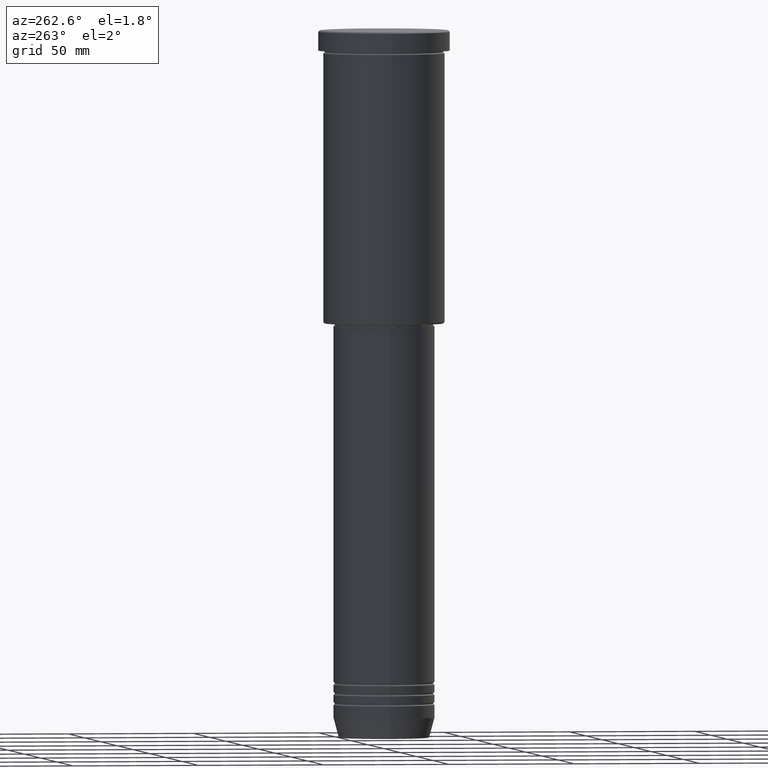
[diagram: clean part render]
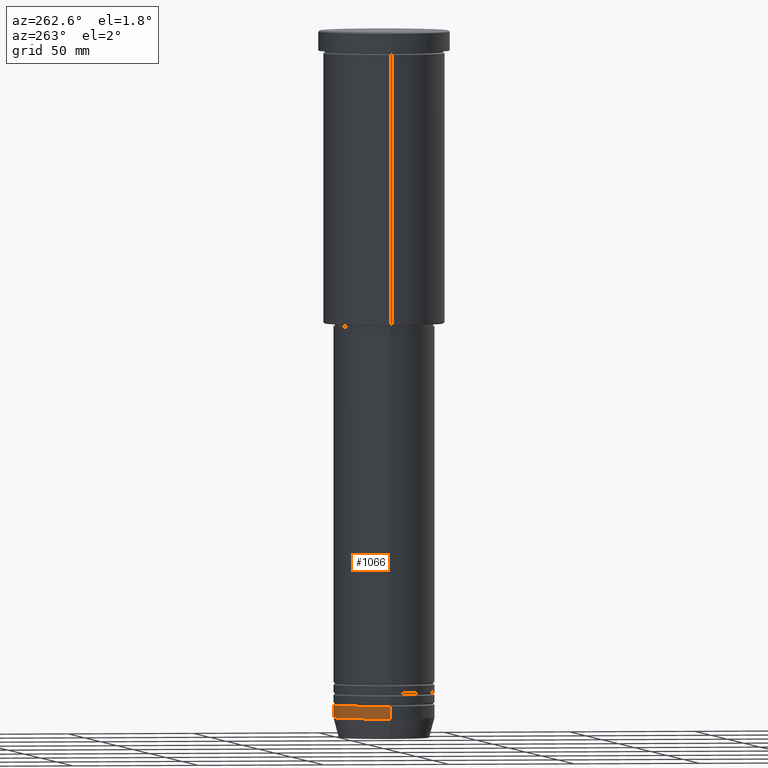
[diagram: same view with one face highlighted and labeled with its STEP entity id]
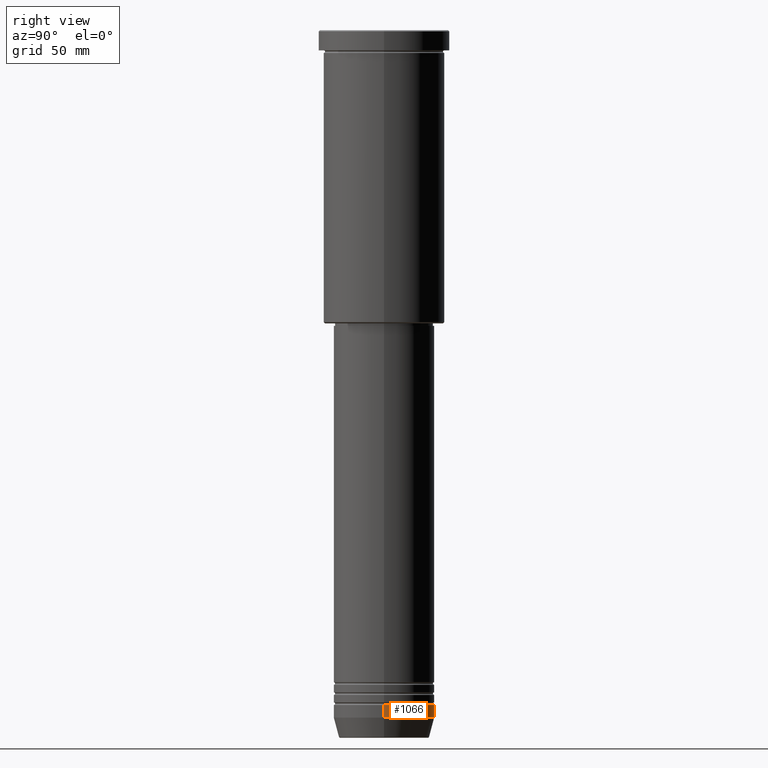
[diagram: same view with one face highlighted and labeled with its STEP entity id]
A machine part, auxiliary view. The second image highlights one B-rep face of the part: STEP entity #1066.
A second angle (right view) of the same face is appended — the face is thin or edge-on in the first view.
In plain terms, the highlighted cylindrical surface (partial cylindrical patch) has radius 20 mm, axis along (-0, -0, 1).
Its self-contained STEP definition (entity closure, byte-faithful):
#59 = DIRECTION ( 'NONE',  ( 1.000000000000000000, 0.000000000000000000, 0.000000000000000000 ) ) ;
#84 = CARTESIAN_POINT ( 'NONE',  ( 20.00000000000000355, 0.000000000000000000, -272.0000000000000000 ) ) ;
#97 = CARTESIAN_POINT ( 'NONE',  ( 20.00000000000000355, 0.000000000000000000, 0.000000000000000000 ) ) ;
#126 = CARTESIAN_POINT ( 'NONE',  ( -20.00000000000000355, 2.449293598294706907E-15, 0.000000000000000000 ) ) ;
#135 = CIRCLE ( 'NONE', #670, 20.00000000000000000 ) ;
#144 = DIRECTION ( 'NONE',  ( -0.000000000000000000, -0.000000000000000000, 1.000000000000000000 ) ) ;
#156 = ORIENTED_EDGE ( 'NONE', *, *, #1087, .F. ) ;
#186 = CIRCLE ( 'NONE', #573, 20.00000000000000355 ) ;
#187 = VECTOR ( 'NONE', #835, 1000.000000000000000 ) ;
#225 = DIRECTION ( 'NONE',  ( -0.000000000000000000, -0.000000000000000000, 1.000000000000000000 ) ) ;
#255 = EDGE_CURVE ( 'NONE', #398, #865, #382, .T. ) ;
#272 = EDGE_CURVE ( 'NONE', #754, #398, #186, .T. ) ;
#341 = CARTESIAN_POINT ( 'NONE',  ( -20.00000000000000355, 2.449293598294706907E-15, -272.0000000000000000 ) ) ;
#382 = LINE ( 'NONE', #126, #800 ) ;
#398 = VERTEX_POINT ( 'NONE', #341 ) ;
#457 = ORIENTED_EDGE ( 'NONE', *, *, #485, .F. ) ;
#485 = EDGE_CURVE ( 'NONE', #754, #631, #555, .T. ) ;
#488 = EDGE_LOOP ( 'NONE', ( #1015, #806, #156, #457 ) ) ;
#534 = AXIS2_PLACEMENT_3D ( 'NONE', #986, #144, #59 ) ;
#555 = LINE ( 'NONE', #97, #187 ) ;
#573 = AXIS2_PLACEMENT_3D ( 'NONE', #858, #774, #671 ) ;
#590 = DIRECTION ( 'NONE',  ( -0.000000000000000000, -0.000000000000000000, 1.000000000000000000 ) ) ;
#604 = CARTESIAN_POINT ( 'NONE',  ( 0.000000000000000000, 0.000000000000000000, -267.0000000000000000 ) ) ;
#631 = VERTEX_POINT ( 'NONE', #817 ) ;
#670 = AXIS2_PLACEMENT_3D ( 'NONE', #604, #225, #794 ) ;
#671 = DIRECTION ( 'NONE',  ( 1.000000000000000000, 0.000000000000000000, 0.000000000000000000 ) ) ;
#690 = FACE_OUTER_BOUND ( 'NONE', #488, .T. ) ;
#754 = VERTEX_POINT ( 'NONE', #84 ) ;
#774 = DIRECTION ( 'NONE',  ( -0.000000000000000000, -0.000000000000000000, 1.000000000000000000 ) ) ;
#790 = CYLINDRICAL_SURFACE ( 'NONE', #534, 20.00000000000000355 ) ;
#794 = DIRECTION ( 'NONE',  ( 1.000000000000000000, 0.000000000000000000, 0.000000000000000000 ) ) ;
#800 = VECTOR ( 'NONE', #590, 1000.000000000000000 ) ;
#806 = ORIENTED_EDGE ( 'NONE', *, *, #255, .T. ) ;
#817 = CARTESIAN_POINT ( 'NONE',  ( 20.00000000000000000, 0.000000000000000000, -267.0000000000000000 ) ) ;
#835 = DIRECTION ( 'NONE',  ( -0.000000000000000000, -0.000000000000000000, 1.000000000000000000 ) ) ;
#858 = CARTESIAN_POINT ( 'NONE',  ( 0.000000000000000000, 0.000000000000000000, -272.0000000000000000 ) ) ;
#865 = VERTEX_POINT ( 'NONE', #1019 ) ;
#986 = CARTESIAN_POINT ( 'NONE',  ( 0.000000000000000000, 0.000000000000000000, 0.000000000000000000 ) ) ;
#1015 = ORIENTED_EDGE ( 'NONE', *, *, #272, .T. ) ;
#1019 = CARTESIAN_POINT ( 'NONE',  ( -20.00000000000000000, 2.449293598294706513E-15, -267.0000000000000000 ) ) ;
#1066 = ADVANCED_FACE ( 'NONE', ( #690 ), #790, .T. ) ;
#1087 = EDGE_CURVE ( 'NONE', #631, #865, #135, .T. ) ;